MODEL slx_593b8c92e012
KIND model
CONFIG AbsTol = auto
CONFIG EnableMultiTasking = on
CONFIG FixedStep = auto
CONFIG MaxStep = auto
CONFIG MinStep = auto
CONFIG RelTol = 1e-3
CONFIG SampleTimeConstraint = Unconstrained
CONFIG Solver = VariableStepAuto
CONFIG SolverName = VariableStepAuto
CONFIG StartTime = 0.0
CONFIG StopTime = 10.0
BLOCK [Inport] ActualTrajectoryPoint
  IconDisplay = Port number
  OutDataTypeStr = Bus: TrajectoryPoint
BLOCK [BusSelector] Bus Selector
  OutputAsBus = off
  OutputSignals = valid_Loc1_b,valid_IMU1_b
  Ports = [1, 2]
BLOCK [BusSelector] Bus Selector1
  OutputAsBus = off
  OutputSignals = valid_Loc1_b,valid_Loc2_b,valid_IMU1_b,valid_IMU2_b
  Ports = [1, 4]
BLOCK [Reference] Compare To Constant  REF=simulink/Logic and Bit
Operations/Compare
To Constant
  Ports = [1, 1]
  SourceBlock = simulink/Logic and Bit\nOperations/Compare\nTo Constant
  SourceProductBaseCode = SL
  SourceProductName = Simulink
  SourceType = Compare To Constant
BLOCK [Constant] Constant
BLOCK [Constant] Constant1
  Value = 0
BLOCK [Constant] Constant2
  Value = tS
BLOCK [Constant] Constant3
  Value = 0
BLOCK [Constant] Constant6
  Value = boolean(zeros(19, 1))
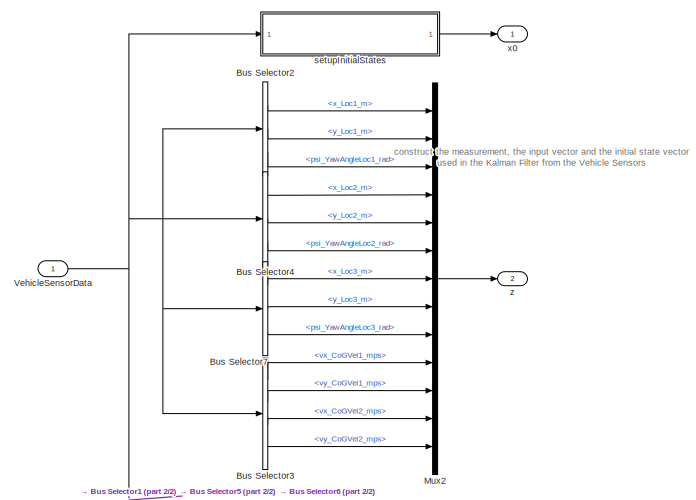
[diagram: CreateKFVectors - part 1/2, top left region]
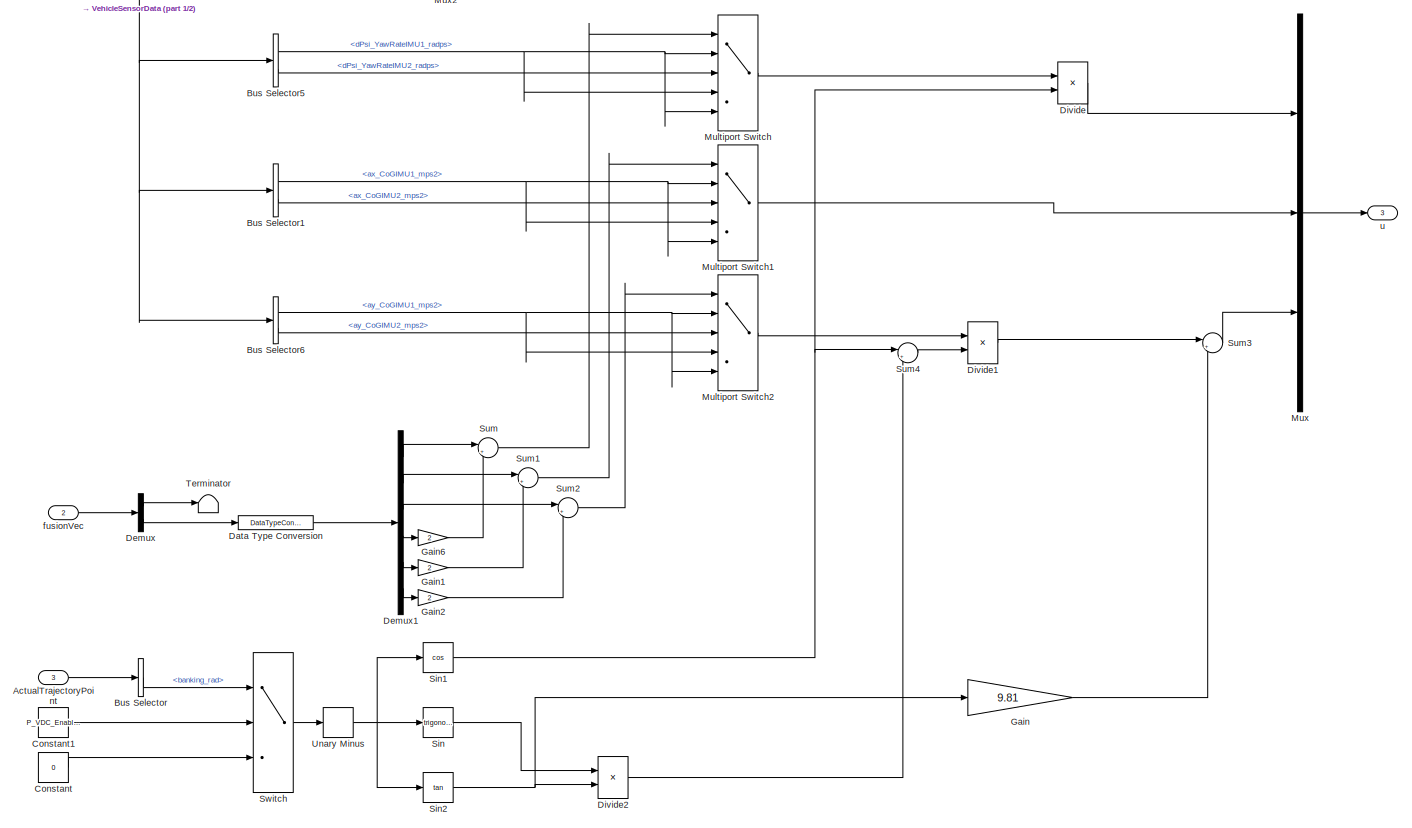
[diagram: CreateKFVectors - part 2/2, full width, bottom band]
BLOCK [SubSystem] CreateKFVectors
  Ports = [3, 3]
  RequestExecContextInheritance = off
BLOCK [Inport] CreateKFVectors/ActualTrajectoryPoint
  IconDisplay = Port number
  OutDataTypeStr = Bus: TrajectoryPoint
  Port = 3
BLOCK [BusSelector] CreateKFVectors/Bus Selector
  OutputAsBus = off
  OutputSignals = banking_rad
  Ports = [1, 1]
BLOCK [BusSelector] CreateKFVectors/Bus Selector1
  OutputAsBus = off
  OutputSignals = ax_CoGIMU1_mps2,ax_CoGIMU2_mps2
  Ports = [1, 2]
BLOCK [BusSelector] CreateKFVectors/Bus Selector2
  OutputAsBus = off
  OutputSignals = x_Loc1_m,y_Loc1_m,psi_YawAngleLoc1_rad
  Ports = [1, 3]
BLOCK [BusSelector] CreateKFVectors/Bus Selector3
  OutputAsBus = off
  OutputSignals = vx_CoGVel1_mps,vy_CoGVel1_mps,vx_CoGVel2_mps,vy_CoGVel2_mps
  Ports = [1, 4]
BLOCK [BusSelector] CreateKFVectors/Bus Selector4
  OutputAsBus = off
  OutputSignals = x_Loc2_m,y_Loc2_m,psi_YawAngleLoc2_rad
  Ports = [1, 3]
BLOCK [BusSelector] CreateKFVectors/Bus Selector5
  OutputAsBus = off
  OutputSignals = dPsi_YawRateIMU1_radps,dPsi_YawRateIMU2_radps
  Ports = [1, 2]
BLOCK [BusSelector] CreateKFVectors/Bus Selector6
  OutputAsBus = off
  OutputSignals = ay_CoGIMU1_mps2,ay_CoGIMU2_mps2
  Ports = [1, 2]
BLOCK [BusSelector] CreateKFVectors/Bus Selector7
  OutputAsBus = off
  OutputSignals = x_Loc3_m,y_Loc3_m,psi_YawAngleLoc3_rad
  Ports = [1, 3]
BLOCK [Constant] CreateKFVectors/Constant
  Value = 0
BLOCK [Constant] CreateKFVectors/Constant1
  Value = P_VDC_EnableBankingCompStateEst_b
BLOCK [DataTypeConversion] CreateKFVectors/Data Type Conversion
  OutDataTypeStr = double
  RndMeth = Floor
  SaturateOnIntegerOverflow = off
BLOCK [Demux] CreateKFVectors/Demux
  DisplayOption = bar
  Outputs = [13 6]
  Ports = [1, 2]
BLOCK [Demux] CreateKFVectors/Demux1
  DisplayOption = bar
  Outputs = 6
  Ports = [1, 6]
BLOCK [Product] CreateKFVectors/Divide
  InputSameDT = off
  Inputs = */
  OutDataTypeStr = Inherit: Inherit via internal rule
  Ports = [2, 1]
  RndMeth = Floor
  SaturateOnIntegerOverflow = off
BLOCK [Product] CreateKFVectors/Divide1
  InputSameDT = off
  Inputs = **
  OutDataTypeStr = Inherit: Inherit via internal rule
  Ports = [2, 1]
  RndMeth = Floor
  SaturateOnIntegerOverflow = off
BLOCK [Product] CreateKFVectors/Divide2
  InputSameDT = off
  Inputs = **
  OutDataTypeStr = Inherit: Inherit via internal rule
  Ports = [2, 1]
  RndMeth = Floor
  SaturateOnIntegerOverflow = off
BLOCK [Gain] CreateKFVectors/Gain
  Gain = 9.81
  OutDataTypeStr = Inherit: Inherit via internal rule
  ParamDataTypeStr = Inherit: Inherit via internal rule
  SaturateOnIntegerOverflow = off
BLOCK [Gain] CreateKFVectors/Gain1
  Gain = 2
  OutDataTypeStr = Inherit: Inherit via internal rule
  ParamDataTypeStr = Inherit: Inherit via internal rule
  SaturateOnIntegerOverflow = off
BLOCK [Gain] CreateKFVectors/Gain2
  Gain = 2
  OutDataTypeStr = Inherit: Inherit via internal rule
  ParamDataTypeStr = Inherit: Inherit via internal rule
  SaturateOnIntegerOverflow = off
BLOCK [Gain] CreateKFVectors/Gain6
  Gain = 2
  OutDataTypeStr = Inherit: Inherit via internal rule
  ParamDataTypeStr = Inherit: Inherit via internal rule
  SaturateOnIntegerOverflow = off
BLOCK [MultiPortSwitch] CreateKFVectors/Multiport Switch
  DataPortForDefault = Additional data port
  DiagnosticForDefault = Warning
  InputSameDT = off
  Ports = [5, 1]
  SaturateOnIntegerOverflow = off
BLOCK [MultiPortSwitch] CreateKFVectors/Multiport Switch1
  DataPortForDefault = Additional data port
  DiagnosticForDefault = Warning
  InputSameDT = off
  Ports = [5, 1]
  SaturateOnIntegerOverflow = off
BLOCK [MultiPortSwitch] CreateKFVectors/Multiport Switch2
  DataPortForDefault = Additional data port
  DiagnosticForDefault = Warning
  InputSameDT = off
  Ports = [5, 1]
  SaturateOnIntegerOverflow = off
BLOCK [Mux] CreateKFVectors/Mux
  DisplayOption = bar
  Inputs = 3
  Ports = [3, 1]
BLOCK [Mux] CreateKFVectors/Mux2
  DisplayOption = bar
  Inputs = 13
  Ports = [13, 1]
BLOCK [Trigonometry] CreateKFVectors/Sin
  Ports = [1, 1]
BLOCK [Trigonometry] CreateKFVectors/Sin1
  Operator = cos
  Ports = [1, 1]
BLOCK [Trigonometry] CreateKFVectors/Sin2
  Operator = tan
  Ports = [1, 1]
BLOCK [Sum] CreateKFVectors/Sum
  IconShape = round
  InputSameDT = off
  Inputs = |++
  OutDataTypeStr = Inherit: Inherit via internal rule
  Ports = [2, 1]
  SaturateOnIntegerOverflow = off
BLOCK [Sum] CreateKFVectors/Sum1
  IconShape = round
  InputSameDT = off
  Inputs = |++
  OutDataTypeStr = Inherit: Inherit via internal rule
  Ports = [2, 1]
  SaturateOnIntegerOverflow = off
BLOCK [Sum] CreateKFVectors/Sum2
  IconShape = round
  InputSameDT = off
  Inputs = |++
  OutDataTypeStr = Inherit: Inherit via internal rule
  Ports = [2, 1]
  SaturateOnIntegerOverflow = off
BLOCK [Sum] CreateKFVectors/Sum3
  IconShape = round
  InputSameDT = off
  Inputs = |++
  OutDataTypeStr = Inherit: Inherit via internal rule
  Ports = [2, 1]
  SaturateOnIntegerOverflow = off
BLOCK [Sum] CreateKFVectors/Sum4
  IconShape = round
  InputSameDT = off
  Inputs = |++
  OutDataTypeStr = Inherit: Inherit via internal rule
  Ports = [2, 1]
  SaturateOnIntegerOverflow = off
BLOCK [Switch] CreateKFVectors/Switch
  Criteria = u2 > Threshold
  InputSameDT = off
  SaturateOnIntegerOverflow = off
BLOCK [Terminator] CreateKFVectors/Terminator
BLOCK [UnaryMinus] CreateKFVectors/Unary Minus
BLOCK [Inport] CreateKFVectors/VehicleSensorData
  IconDisplay = Port number
BLOCK [Inport] CreateKFVectors/fusionVec
  IconDisplay = Port number
  OutDataTypeStr = boolean
  Port = 2
BLOCK [SubSystem] CreateKFVectors/setupInitialStates
  Ports = [1, 1]
  RequestExecContextInheritance = off
BLOCK [BusSelector] CreateKFVectors/setupInitialStates/Bus Selector
  OutputAsBus = off
  OutputSignals = x_Loc1_m,y_Loc1_m,psi_YawAngleLoc1_rad
  Ports = [1, 3]
BLOCK [BusSelector] CreateKFVectors/setupInitialStates/Bus Selector1
  OutputAsBus = off
  OutputSignals = vx_CoGVel1_mps,vy_CoGVel1_mps
  Ports = [1, 2]
BLOCK [Constant] CreateKFVectors/setupInitialStates/Constant
  Value = 0
BLOCK [Constant] CreateKFVectors/setupInitialStates/Constant1
  Value = P_VDC_ManualInitializationStartVelocity
BLOCK [Constant] CreateKFVectors/setupInitialStates/Constant2
  Value = P_VDC_ManualInitialization_v0
BLOCK [Constant] CreateKFVectors/setupInitialStates/Constant6
  Value = P_VDC_ManualInitializationStateEstimation
BLOCK [Constant] CreateKFVectors/setupInitialStates/Constant7
  Value = P_VDC_ManualInitializationStartPose
BLOCK [Mux] CreateKFVectors/setupInitialStates/Mux
  DisplayOption = bar
  Inputs = 2
  Ports = [2, 1]
BLOCK [Mux] CreateKFVectors/setupInitialStates/Mux1
  DisplayOption = bar
  Inputs = 2
  Ports = [2, 1]
BLOCK [Mux] CreateKFVectors/setupInitialStates/Mux2
  DisplayOption = bar
  Inputs = 2
  Ports = [2, 1]
BLOCK [Mux] CreateKFVectors/setupInitialStates/Mux3
  DisplayOption = bar
  Inputs = 3
  Ports = [3, 1]
BLOCK [Switch] CreateKFVectors/setupInitialStates/Switch1
  Criteria = u2 > Threshold
  InputSameDT = off
  SaturateOnIntegerOverflow = off
BLOCK [Switch] CreateKFVectors/setupInitialStates/Switch3
  Criteria = u2 > Threshold
  InputSameDT = off
  SaturateOnIntegerOverflow = off
BLOCK [Inport] CreateKFVectors/setupInitialStates/VehicleSensorData
  IconDisplay = Port number
BLOCK [Outport] CreateKFVectors/setupInitialStates/x0
  IconDisplay = Port number
BLOCK [Outport] CreateKFVectors/u
  IconDisplay = Port number
  Port = 3
BLOCK [Outport] CreateKFVectors/x0
  IconDisplay = Port number
BLOCK [Outport] CreateKFVectors/z
  IconDisplay = Port number
  Port = 2
BLOCK [SubSystem] CreateResidualsBus
  Ports = [2, 2]
  RequestExecContextInheritance = off
BLOCK [BusCreator] CreateResidualsBus/Bus Creator2
  DisplayOption = bar
  InheritFromInputs = on
  Inputs = 21
  Ports = [21, 1]
BLOCK [SubSystem] CreateResidualsBus/CheckResiduals
  Ports = [1, 1]
  RequestExecContextInheritance = off
BLOCK [Abs] CreateResidualsBus/CheckResiduals/Abs
  SaturateOnIntegerOverflow = off
BLOCK [Abs] CreateResidualsBus/CheckResiduals/Abs1
  SaturateOnIntegerOverflow = off
BLOCK [Abs] CreateResidualsBus/CheckResiduals/Abs10
  SaturateOnIntegerOverflow = off
BLOCK [Abs] CreateResidualsBus/CheckResiduals/Abs11
  SaturateOnIntegerOverflow = off
BLOCK [Abs] CreateResidualsBus/CheckResiduals/Abs12
  SaturateOnIntegerOverflow = off
BLOCK [Abs] CreateResidualsBus/CheckResiduals/Abs2
  SaturateOnIntegerOverflow = off
BLOCK [Abs] CreateResidualsBus/CheckResiduals/Abs3
  SaturateOnIntegerOverflow = off
BLOCK [Abs] CreateResidualsBus/CheckResiduals/Abs4
  SaturateOnIntegerOverflow = off
BLOCK [Abs] CreateResidualsBus/CheckResiduals/Abs5
  SaturateOnIntegerOverflow = off
BLOCK [Abs] CreateResidualsBus/CheckResiduals/Abs6
  SaturateOnIntegerOverflow = off
BLOCK [Abs] CreateResidualsBus/CheckResiduals/Abs7
  SaturateOnIntegerOverflow = off
BLOCK [Abs] CreateResidualsBus/CheckResiduals/Abs8
  SaturateOnIntegerOverflow = off
BLOCK [Abs] CreateResidualsBus/CheckResiduals/Abs9
  SaturateOnIntegerOverflow = off
BLOCK [BusSelector] CreateResidualsBus/CheckResiduals/Bus Selector
  OutputAsBus = off
  OutputSignals = res_xLoc1_m,res_yLoc1_m,res_psiLoc1_rad,res_xLoc2_m,res_yLoc2_m,res_psiLoc2_rad,res_xLoc3_m,res_yLoc3_m,res_psiLoc3_rad,res_vxVel1_mps,res_vyVel1_mps,res_vxVel2_mps,res_vyVel2_mps
  Ports = [1, 13]
BLOCK [Reference] CreateResidualsBus/CheckResiduals/Compare To Constant  REF=simulink/Logic and Bit
Operations/Compare
To Constant
  Ports = [1, 1]
  SourceBlock = simulink/Logic and Bit\nOperations/Compare\nTo Constant
  SourceProductBaseCode = SL
  SourceProductName = Simulink
  SourceType = Compare To Constant
BLOCK [Reference] CreateResidualsBus/CheckResiduals/Compare To Constant1  REF=simulink/Logic and Bit
Operations/Compare
To Constant
  Ports = [1, 1]
  SourceBlock = simulink/Logic and Bit\nOperations/Compare\nTo Constant
  SourceProductBaseCode = SL
  SourceProductName = Simulink
  SourceType = Compare To Constant
BLOCK [Reference] CreateResidualsBus/CheckResiduals/Compare To Constant10  REF=simulink/Logic and Bit
Operations/Compare
To Constant
  Ports = [1, 1]
  SourceBlock = simulink/Logic and Bit\nOperations/Compare\nTo Constant
  SourceProductBaseCode = SL
  SourceProductName = Simulink
  SourceType = Compare To Constant
BLOCK [Reference] CreateResidualsBus/CheckResiduals/Compare To Constant11  REF=simulink/Logic and Bit
Operations/Compare
To Constant
  Ports = [1, 1]
  SourceBlock = simulink/Logic and Bit\nOperations/Compare\nTo Constant
  SourceProductBaseCode = SL
  SourceProductName = Simulink
  SourceType = Compare To Constant
BLOCK [Reference] CreateResidualsBus/CheckResiduals/Compare To Constant12  REF=simulink/Logic and Bit
Operations/Compare
To Constant
  Ports = [1, 1]
  SourceBlock = simulink/Logic and Bit\nOperations/Compare\nTo Constant
  SourceProductBaseCode = SL
  SourceProductName = Simulink
  SourceType = Compare To Constant
BLOCK [Reference] CreateResidualsBus/CheckResiduals/Compare To Constant2  REF=simulink/Logic and Bit
Operations/Compare
To Constant
  Ports = [1, 1]
  SourceBlock = simulink/Logic and Bit\nOperations/Compare\nTo Constant
  SourceProductBaseCode = SL
  SourceProductName = Simulink
  SourceType = Compare To Constant
BLOCK [Reference] CreateResidualsBus/CheckResiduals/Compare To Constant3  REF=simulink/Logic and Bit
Operations/Compare
To Constant
  Ports = [1, 1]
  SourceBlock = simulink/Logic and Bit\nOperations/Compare\nTo Constant
  SourceProductBaseCode = SL
  SourceProductName = Simulink
  SourceType = Compare To Constant
BLOCK [Reference] CreateResidualsBus/CheckResiduals/Compare To Constant4  REF=simulink/Logic and Bit
Operations/Compare
To Constant
  Ports = [1, 1]
  SourceBlock = simulink/Logic and Bit\nOperations/Compare\nTo Constant
  SourceProductBaseCode = SL
  SourceProductName = Simulink
  SourceType = Compare To Constant
BLOCK [Reference] CreateResidualsBus/CheckResiduals/Compare To Constant5  REF=simulink/Logic and Bit
Operations/Compare
To Constant
  Ports = [1, 1]
  SourceBlock = simulink/Logic and Bit\nOperations/Compare\nTo Constant
  SourceProductBaseCode = SL
  SourceProductName = Simulink
  SourceType = Compare To Constant
BLOCK [Reference] CreateResidualsBus/CheckResiduals/Compare To Constant6  REF=simulink/Logic and Bit
Operations/Compare
To Constant
  Ports = [1, 1]
  SourceBlock = simulink/Logic and Bit\nOperations/Compare\nTo Constant
  SourceProductBaseCode = SL
  SourceProductName = Simulink
  SourceType = Compare To Constant
BLOCK [Reference] CreateResidualsBus/CheckResiduals/Compare To Constant7  REF=simulink/Logic and Bit
Operations/Compare
To Constant
  Ports = [1, 1]
  SourceBlock = simulink/Logic and Bit\nOperations/Compare\nTo Constant
  SourceProductBaseCode = SL
  SourceProductName = Simulink
  SourceType = Compare To Constant
BLOCK [Reference] CreateResidualsBus/CheckResiduals/Compare To Constant8  REF=simulink/Logic and Bit
Operations/Compare
To Constant
  Ports = [1, 1]
  SourceBlock = simulink/Logic and Bit\nOperations/Compare\nTo Constant
  SourceProductBaseCode = SL
  SourceProductName = Simulink
  SourceType = Compare To Constant
BLOCK [Reference] CreateResidualsBus/CheckResiduals/Compare To Constant9  REF=simulink/Logic and Bit
Operations/Compare
To Constant
  Ports = [1, 1]
  SourceBlock = simulink/Logic and Bit\nOperations/Compare\nTo Constant
  SourceProductBaseCode = SL
  SourceProductName = Simulink
  SourceType = Compare To Constant
BLOCK [DiscreteFir] CreateResidualsBus/CheckResiduals/Discrete FIR Filter1
  Coefficients = ones(1, P_VDC_ResFilterSamples)/P_VDC_ResFilterSamples
  InputPortMap = u0
  OutputPortMap = o0
  Ports = [1, 1]
BLOCK [DiscreteFir] CreateResidualsBus/CheckResiduals/Discrete FIR Filter10
  Coefficients = ones(1, P_VDC_ResFilterSamples)/P_VDC_ResFilterSamples
  InputPortMap = u0
  OutputPortMap = o0
  Ports = [1, 1]
BLOCK [DiscreteFir] CreateResidualsBus/CheckResiduals/Discrete FIR Filter11
  Coefficients = ones(1, P_VDC_ResFilterSamples)/P_VDC_ResFilterSamples
  InputPortMap = u0
  OutputPortMap = o0
  Ports = [1, 1]
BLOCK [DiscreteFir] CreateResidualsBus/CheckResiduals/Discrete FIR Filter12
  Coefficients = ones(1, P_VDC_ResFilterSamples)/P_VDC_ResFilterSamples
  InputPortMap = u0
  OutputPortMap = o0
  Ports = [1, 1]
BLOCK [DiscreteFir] CreateResidualsBus/CheckResiduals/Discrete FIR Filter13
  Coefficients = ones(1, P_VDC_ResFilterSamples)/P_VDC_ResFilterSamples
  InputPortMap = u0
  OutputPortMap = o0
  Ports = [1, 1]
BLOCK [DiscreteFir] CreateResidualsBus/CheckResiduals/Discrete FIR Filter2
  Coefficients = ones(1, P_VDC_ResFilterSamples)/P_VDC_ResFilterSamples
  InputPortMap = u0
  OutputPortMap = o0
  Ports = [1, 1]
BLOCK [DiscreteFir] CreateResidualsBus/CheckResiduals/Discrete FIR Filter3
  Coefficients = ones(1, P_VDC_ResFilterSamples)/P_VDC_ResFilterSamples
  InputPortMap = u0
  OutputPortMap = o0
  Ports = [1, 1]
BLOCK [DiscreteFir] CreateResidualsBus/CheckResiduals/Discrete FIR Filter4
  Coefficients = ones(1, P_VDC_ResFilterSamples)/P_VDC_ResFilterSamples
  InputPortMap = u0
  OutputPortMap = o0
  Ports = [1, 1]
BLOCK [DiscreteFir] CreateResidualsBus/CheckResiduals/Discrete FIR Filter5
  Coefficients = ones(1, P_VDC_ResFilterSamples)/P_VDC_ResFilterSamples
  InputPortMap = u0
  OutputPortMap = o0
  Ports = [1, 1]
BLOCK [DiscreteFir] CreateResidualsBus/CheckResiduals/Discrete FIR Filter6
  Coefficients = ones(1, P_VDC_ResFilterSamples)/P_VDC_ResFilterSamples
  InputPortMap = u0
  OutputPortMap = o0
  Ports = [1, 1]
BLOCK [DiscreteFir] CreateResidualsBus/CheckResiduals/Discrete FIR Filter7
  Coefficients = ones(1, P_VDC_ResFilterSamples)/P_VDC_ResFilterSamples
  InputPortMap = u0
  OutputPortMap = o0
  Ports = [1, 1]
BLOCK [DiscreteFir] CreateResidualsBus/CheckResiduals/Discrete FIR Filter8
  Coefficients = ones(1, P_VDC_ResFilterSamples)/P_VDC_ResFilterSamples
  InputPortMap = u0
  OutputPortMap = o0
  Ports = [1, 1]
BLOCK [DiscreteFir] CreateResidualsBus/CheckResiduals/Discrete FIR Filter9
  Coefficients = ones(1, P_VDC_ResFilterSamples)/P_VDC_ResFilterSamples
  InputPortMap = u0
  OutputPortMap = o0
  Ports = [1, 1]
BLOCK [Logic] CreateResidualsBus/CheckResiduals/Logical Operator
  AllPortsSameDT = off
  Inputs = 13
  OutDataTypeStr = boolean
  Ports = [13, 1]
BLOCK [Inport] CreateResidualsBus/CheckResiduals/Residuals
  IconDisplay = Port number
BLOCK [Outport] CreateResidualsBus/CheckResiduals/Residuals_OK
  IconDisplay = Port number
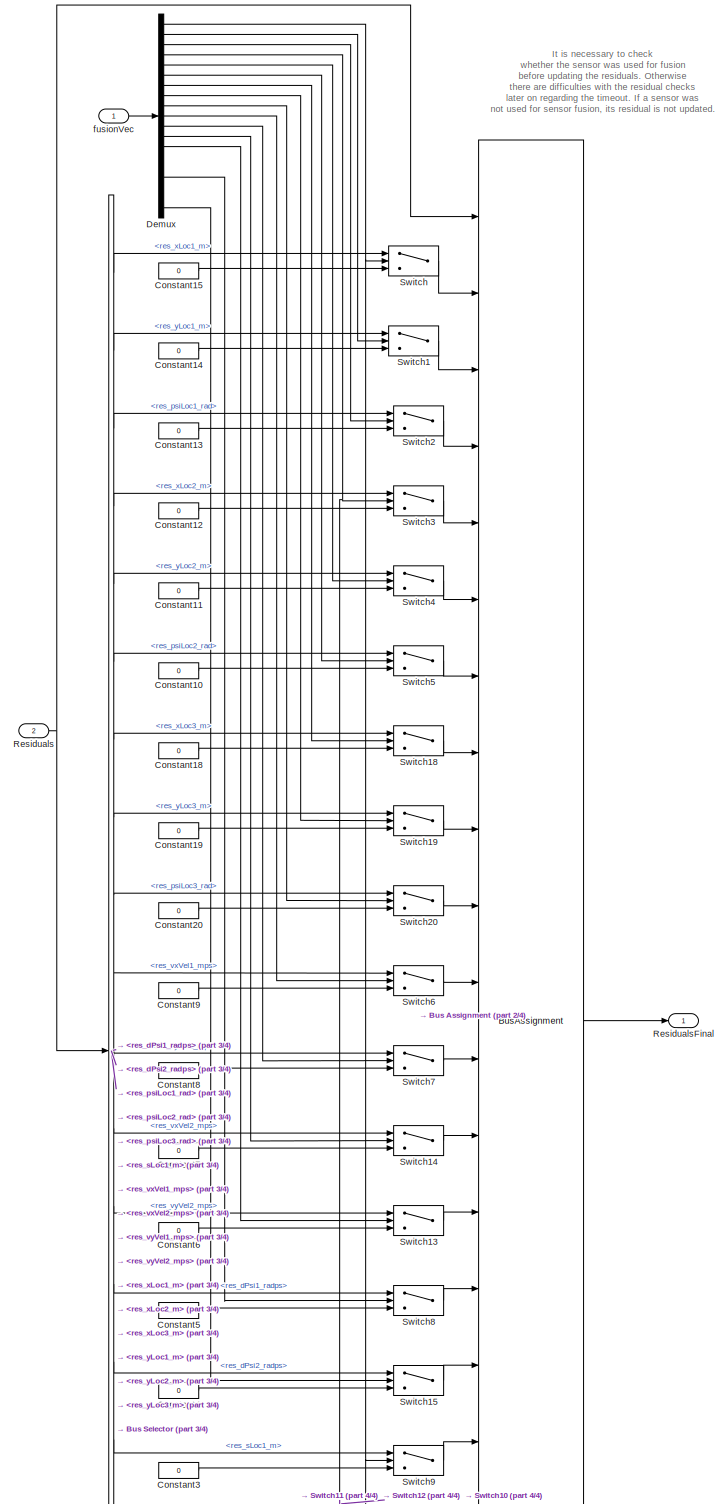
[diagram: CreateResidualsBus/ConditionalResidualUpdate - part 1/4, most of the canvas]
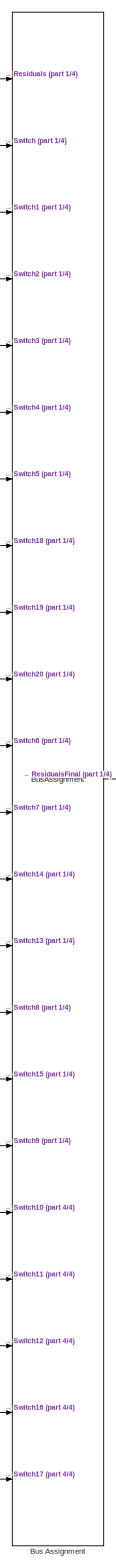
[diagram: CreateResidualsBus/ConditionalResidualUpdate - part 2/4, right side, full height]
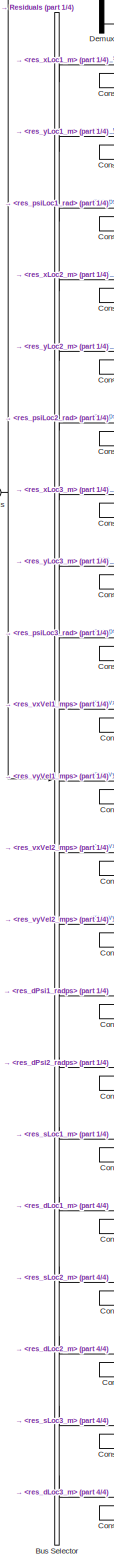
[diagram: CreateResidualsBus/ConditionalResidualUpdate - part 3/4, left side, full height]
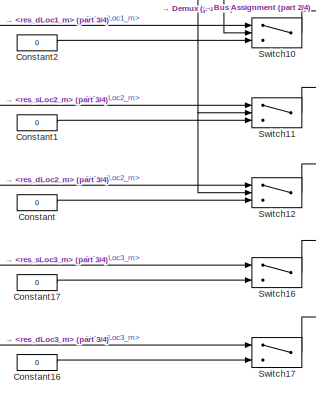
[diagram: CreateResidualsBus/ConditionalResidualUpdate - part 4/4, bottom center region]
BLOCK [SubSystem] CreateResidualsBus/ConditionalResidualUpdate
  Ports = [2, 1]
  RequestExecContextInheritance = off
BLOCK [BusAssignment] CreateResidualsBus/ConditionalResidualUpdate/Bus Assignment
  AssignedSignals = res_xLoc1_m,res_yLoc1_m,res_psiLoc1_rad,res_xLoc2_m,res_yLoc2_m,res_psiLoc2_rad,res_xLoc3_m,res_yLoc3_m,res_psiLoc3_rad,res_vxVel1_mps,res_vyVel1_mps,res_vxVel2_mps,res_vyVel2_mps,res_dPsi1_radps,res_dPsi2_radps,res_sLoc1_m,res_dLoc1_m,res_sLoc2_m,res_dLoc2_m,res_sLoc3_m,res_dLoc3_m
  Ports = [22, 1]
BLOCK [BusSelector] CreateResidualsBus/ConditionalResidualUpdate/Bus Selector
  OutputAsBus = off
  OutputSignals = res_xLoc1_m,res_yLoc1_m,res_psiLoc1_rad,res_xLoc2_m,res_yLoc2_m,res_psiLoc2_rad,res_xLoc3_m,res_yLoc3_m,res_psiLoc3_rad,res_vxVel1_mps,res_vyVel1_mps,res_vxVel2_mps,res_vyVel2_mps,res_dPsi1_radps,res_dPsi2_radps,res_sLoc1_m,res_dLoc1_m,res_sLoc2_m,res_dLoc2_m,res_sLoc3_m,res_dLoc3_m
  Ports = [1, 21]
BLOCK [Constant] CreateResidualsBus/ConditionalResidualUpdate/Constant
  Value = 0
BLOCK [Constant] CreateResidualsBus/ConditionalResidualUpdate/Constant1
  Value = 0
BLOCK [Constant] CreateResidualsBus/ConditionalResidualUpdate/Constant10
  Value = 0
BLOCK [Constant] CreateResidualsBus/ConditionalResidualUpdate/Constant11
  Value = 0
BLOCK [Constant] CreateResidualsBus/ConditionalResidualUpdate/Constant12
  Value = 0
BLOCK [Constant] CreateResidualsBus/ConditionalResidualUpdate/Constant13
  Value = 0
BLOCK [Constant] CreateResidualsBus/ConditionalResidualUpdate/Constant14
  Value = 0
BLOCK [Constant] CreateResidualsBus/ConditionalResidualUpdate/Constant15
  Value = 0
BLOCK [Constant] CreateResidualsBus/ConditionalResidualUpdate/Constant16
  Value = 0
BLOCK [Constant] CreateResidualsBus/ConditionalResidualUpdate/Constant17
  Value = 0
BLOCK [Constant] CreateResidualsBus/ConditionalResidualUpdate/Constant18
  Value = 0
BLOCK [Constant] CreateResidualsBus/ConditionalResidualUpdate/Constant19
  Value = 0
BLOCK [Constant] CreateResidualsBus/ConditionalResidualUpdate/Constant2
  Value = 0
BLOCK [Constant] CreateResidualsBus/ConditionalResidualUpdate/Constant20
  Value = 0
BLOCK [Constant] CreateResidualsBus/ConditionalResidualUpdate/Constant3
  Value = 0
BLOCK [Constant] CreateResidualsBus/ConditionalResidualUpdate/Constant4
  Value = 0
BLOCK [Constant] CreateResidualsBus/ConditionalResidualUpdate/Constant5
  Value = 0
BLOCK [Constant] CreateResidualsBus/ConditionalResidualUpdate/Constant6
  Value = 0
BLOCK [Constant] CreateResidualsBus/ConditionalResidualUpdate/Constant7
  Value = 0
BLOCK [Constant] CreateResidualsBus/ConditionalResidualUpdate/Constant8
  Value = 0
BLOCK [Constant] CreateResidualsBus/ConditionalResidualUpdate/Constant9
  Value = 0
BLOCK [Demux] CreateResidualsBus/ConditionalResidualUpdate/Demux
  DisplayOption = bar
  Outputs = 19
  Ports = [1, 19]
BLOCK [Inport] CreateResidualsBus/ConditionalResidualUpdate/Residuals
  IconDisplay = Port number
  Port = 2
BLOCK [Outport] CreateResidualsBus/ConditionalResidualUpdate/ResidualsFinal
  IconDisplay = Port number
BLOCK [Switch] CreateResidualsBus/ConditionalResidualUpdate/Switch
  Criteria = u2 > Threshold
  InputSameDT = off
  SaturateOnIntegerOverflow = off
BLOCK [Switch] CreateResidualsBus/ConditionalResidualUpdate/Switch1
  Criteria = u2 > Threshold
  InputSameDT = off
  SaturateOnIntegerOverflow = off
BLOCK [Switch] CreateResidualsBus/ConditionalResidualUpdate/Switch10
  Criteria = u2 > Threshold
  InputSameDT = off
  SaturateOnIntegerOverflow = off
BLOCK [Switch] CreateResidualsBus/ConditionalResidualUpdate/Switch11
  Criteria = u2 > Threshold
  InputSameDT = off
  SaturateOnIntegerOverflow = off
BLOCK [Switch] CreateResidualsBus/ConditionalResidualUpdate/Switch12
  Criteria = u2 > Threshold
  InputSameDT = off
  SaturateOnIntegerOverflow = off
BLOCK [Switch] CreateResidualsBus/ConditionalResidualUpdate/Switch13
  Criteria = u2 > Threshold
  InputSameDT = off
  SaturateOnIntegerOverflow = off
BLOCK [Switch] CreateResidualsBus/ConditionalResidualUpdate/Switch14
  Criteria = u2 > Threshold
  InputSameDT = off
  SaturateOnIntegerOverflow = off
BLOCK [Switch] CreateResidualsBus/ConditionalResidualUpdate/Switch15
  Criteria = u2 > Threshold
  InputSameDT = off
  SaturateOnIntegerOverflow = off
BLOCK [Switch] CreateResidualsBus/ConditionalResidualUpdate/Switch16
  Criteria = u2 > Threshold
  InputSameDT = off
  SaturateOnIntegerOverflow = off
BLOCK [Switch] CreateResidualsBus/ConditionalResidualUpdate/Switch17
  Criteria = u2 > Threshold
  InputSameDT = off
  SaturateOnIntegerOverflow = off
BLOCK [Switch] CreateResidualsBus/ConditionalResidualUpdate/Switch18
  Criteria = u2 > Threshold
  InputSameDT = off
  SaturateOnIntegerOverflow = off
BLOCK [Switch] CreateResidualsBus/ConditionalResidualUpdate/Switch19
  Criteria = u2 > Threshold
  InputSameDT = off
  SaturateOnIntegerOverflow = off
BLOCK [Switch] CreateResidualsBus/ConditionalResidualUpdate/Switch2
  Criteria = u2 > Threshold
  InputSameDT = off
  SaturateOnIntegerOverflow = off
BLOCK [Switch] CreateResidualsBus/ConditionalResidualUpdate/Switch20
  Criteria = u2 > Threshold
  InputSameDT = off
  SaturateOnIntegerOverflow = off
BLOCK [Switch] CreateResidualsBus/ConditionalResidualUpdate/Switch3
  Criteria = u2 > Threshold
  InputSameDT = off
  SaturateOnIntegerOverflow = off
BLOCK [Switch] CreateResidualsBus/ConditionalResidualUpdate/Switch4
  Criteria = u2 > Threshold
  InputSameDT = off
  SaturateOnIntegerOverflow = off
BLOCK [Switch] CreateResidualsBus/ConditionalResidualUpdate/Switch5
  Criteria = u2 > Threshold
  InputSameDT = off
  SaturateOnIntegerOverflow = off
BLOCK [Switch] CreateResidualsBus/ConditionalResidualUpdate/Switch6
  Criteria = u2 > Threshold
  InputSameDT = off
  SaturateOnIntegerOverflow = off
BLOCK [Switch] CreateResidualsBus/ConditionalResidualUpdate/Switch7
  Criteria = u2 > Threshold
  InputSameDT = off
  SaturateOnIntegerOverflow = off
BLOCK [Switch] CreateResidualsBus/ConditionalResidualUpdate/Switch8
  Criteria = u2 > Threshold
  InputSameDT = off
  SaturateOnIntegerOverflow = off
BLOCK [Switch] CreateResidualsBus/ConditionalResidualUpdate/Switch9
  Criteria = u2 > Threshold
  InputSameDT = off
  SaturateOnIntegerOverflow = off
BLOCK [Inport] CreateResidualsBus/ConditionalResidualUpdate/fusionVec
  IconDisplay = Port number
BLOCK [Demux] CreateResidualsBus/Demux3
  DisplayOption = bar
  Outputs = 21
  Ports = [1, 21]
BLOCK [Outport] CreateResidualsBus/Residuals
  IconDisplay = Port number
BLOCK [Outport] CreateResidualsBus/Residuals_OK
  IconDisplay = Port number
  OutDataTypeStr = boolean
  Port = 2
BLOCK [Inport] CreateResidualsBus/SensorFusionRawResiduals
  IconDisplay = Port number
BLOCK [Inport] CreateResidualsBus/fusionVec
  IconDisplay = Port number
  Port = 2
BLOCK [SubSystem] CreateStateEstimateBus
  Ports = [2, 1]
  RequestExecContextInheritance = off
BLOCK [BusCreator] CreateStateEstimateBus/Bus Creator
  DisplayOption = bar
  InheritFromInputs = on
  Inputs = 6
  Ports = [6, 1]
BLOCK [BusCreator] CreateStateEstimateBus/Bus Creator1
  DisplayOption = bar
  InheritFromInputs = on
  Inputs = 3
  OutDataTypeStr = Bus: CartPos
  Ports = [3, 1]
BLOCK [Demux] CreateStateEstimateBus/Demux
  DisplayOption = bar
  Outputs = 5
  Ports = [1, 5]
BLOCK [Demux] CreateStateEstimateBus/Demux1
  DisplayOption = bar
  Outputs = 3
  Ports = [1, 3]
BLOCK [SignalConversion] CreateStateEstimateBus/Signal Conversion2
  OverrideOpt = off
BLOCK [SignalConversion] CreateStateEstimateBus/Signal Conversion3
  OverrideOpt = off
BLOCK [SignalConversion] CreateStateEstimateBus/Signal Conversion4
  OverrideOpt = off
BLOCK [SignalConversion] CreateStateEstimateBus/Signal Conversion5
  OverrideOpt = off
BLOCK [SignalConversion] CreateStateEstimateBus/Signal Conversion8
  OverrideOpt = off
BLOCK [SignalConversion] CreateStateEstimateBus/Signal Conversion9
  OverrideOpt = off
BLOCK [Outport] CreateStateEstimateBus/StateEstimateFull
  IconDisplay = Port number
BLOCK [Inport] CreateStateEstimateBus/StateEstimateSensorFusion
  IconDisplay = Port number
  Port = 2
BLOCK [Inport] CreateStateEstimateBus/SystemInputs
  IconDisplay = Port number
BLOCK [Reference] CreateStateEstimateBus/Transfer Fcn First Order  REF=simulink/Discrete/Transfer Fcn
First Order
  Ports = [1, 1]
  SourceBlock = simulink/Discrete/Transfer Fcn\nFirst Order
  SourceProductBaseCode = SL
  SourceProductName = Simulink
  SourceType = First Order Transfer Fcn
BLOCK [Reference] CreateStateEstimateBus/Transfer Fcn First Order1  REF=simulink/Discrete/Transfer Fcn
First Order
  Ports = [1, 1]
  SourceBlock = simulink/Discrete/Transfer Fcn\nFirst Order
  SourceProductBaseCode = SL
  SourceProductName = Simulink
  SourceType = First Order Transfer Fcn
BLOCK [Reference] CreateStateEstimateBus/Transfer Fcn First Order2  REF=simulink/Discrete/Transfer Fcn
First Order
  Ports = [1, 1]
  SourceBlock = simulink/Discrete/Transfer Fcn\nFirst Order
  SourceProductBaseCode = SL
  SourceProductName = Simulink
  SourceType = First Order Transfer Fcn
BLOCK [SignalConversion] CreateStateEstimateBus/sig_copy
  OverrideOpt = off
BLOCK [SignalConversion] CreateStateEstimateBus/sig_copy 
  OverrideOpt = off
BLOCK [Demux] Demux
  DisplayOption = bar
  Outputs = [13 6]
  Ports = [1, 2]
BLOCK [Inport] EnableSensorFusion
  IconDisplay = Port number
  OutDataTypeStr = boolean
  Port = 2
BLOCK [Logic] Logical Operator
  AllPortsSameDT = off
  OutDataTypeStr = boolean
  Ports = [2, 1]
BLOCK [Logic] Logical Operator1
  AllPortsSameDT = off
  OutDataTypeStr = boolean
  Ports = [2, 1]
BLOCK [Logic] Logical Operator2
  AllPortsSameDT = off
  Operator = OR
  OutDataTypeStr = boolean
  Ports = [2, 1]
BLOCK [Logic] Logical Operator3
  AllPortsSameDT = off
  Operator = OR
  OutDataTypeStr = boolean
  Ports = [2, 1]
BLOCK [Logic] Logical Operator4
  AllPortsSameDT = off
  OutDataTypeStr = boolean
  Ports = [2, 1]
BLOCK [Logic] Logical Operator5
  AllPortsSameDT = off
  Operator = NOT
  OutDataTypeStr = boolean
  Ports = [1, 1]
BLOCK [Delay] Resettable Delay
  DelayLength = 1
  ExternalReset = Rising
  InitialCondition = eye(5)*0.1
  InputPortMap = u0,r5
  Ports = [2, 1]
BLOCK [Delay] Resettable Delay3
  DelayLength = 1
  ExternalReset = Rising
  InitialConditionSource = Input port
  InputPortMap = u0,r5,p4
  Ports = [3, 1]
BLOCK [Outport] Residuals
  IconDisplay = Port number
  OutDataTypeStr = Bus: StateEstimation_residuals
  Port = 2
BLOCK [Outport] Residuals_OK
  IconDisplay = Port number
  OutDataTypeStr = boolean
  Port = 3
BLOCK [Outport] StateEstimate 
  IconDisplay = Port number
  OutDataTypeStr = Bus: StateEstimation_state
BLOCK [SubSystem] Subsystem
  Ports = [2, 1]
  RequestExecContextInheritance = off
BLOCK [BusSelector] Subsystem/Bus Selector
  OutputAsBus = off
  OutputSignals = valid_IMU1_b,valid_IMU2_b
  Ports = [1, 2]
BLOCK [Constant] Subsystem/Constant
  Value = eye(5)*tS
BLOCK [Logic] Subsystem/Logical Operator
  AllPortsSameDT = off
  Operator = OR
  OutDataTypeStr = boolean
  Ports = [2, 1]
BLOCK [Inport] Subsystem/P
  IconDisplay = Port number
BLOCK [Outport] Subsystem/P_upd
  IconDisplay = Port number
BLOCK [Sum] Subsystem/Sum
  IconShape = round
  InputSameDT = off
  Inputs = |++
  OutDataTypeStr = Inherit: Inherit via internal rule
  Ports = [2, 1]
  SaturateOnIntegerOverflow = off
BLOCK [Switch] Subsystem/Switch1
  Criteria = u2 > Threshold
  InputSameDT = off
  SaturateOnIntegerOverflow = off
BLOCK [Inport] Subsystem/VehicleSensorData
  IconDisplay = Port number
  Port = 2
BLOCK [Sum] Sum
  IconShape = round
  InputSameDT = off
  Inputs = ++|
  OutDataTypeStr = Inherit: Inherit via internal rule
  Ports = [2, 1]
  SaturateOnIntegerOverflow = off
BLOCK [Switch] Switch
  Criteria = u2 > Threshold
  InputSameDT = off
  SaturateOnIntegerOverflow = off
BLOCK [Switch] Switch1
  Criteria = u2 > Threshold
  InputSameDT = off
  SaturateOnIntegerOverflow = off
BLOCK [Switch] Switch2
  Criteria = u2 > Threshold
  InputSameDT = off
  SaturateOnIntegerOverflow = off
BLOCK [Switch] Switch3
  Criteria = u2 > Threshold
  InputSameDT = off
  SaturateOnIntegerOverflow = off
BLOCK [Terminator] Terminator1
BLOCK [UnitDelay] Unit Delay
  InputProcessing = Elements as channels (sample based)
  SampleTime = -1
BLOCK [UnitDelay] Unit Delay1
  InputProcessing = Elements as channels (sample based)
  SampleTime = -1
BLOCK [Inport] VehicleSensorData
  IconDisplay = Port number
  OutDataTypeStr = Bus: VehicleSensorData
  Port = 3
BLOCK [SubSystem] createFusionVec
  Ports = [1, 1]
  RequestExecContextInheritance = off
BLOCK [BusSelector] createFusionVec/Bus Selector
  OutputAsBus = off
  OutputSignals = t_EstimateLoc1_s,t_EstimateLoc2_s,t_EstimateLoc3_s,valid_Loc1_b,valid_Loc2_b,valid_Loc3_b,valid_Vel1_b,valid_Vel2_b,valid_IMU1_b,valid_IMU2_b
  Ports = [1, 10]
BLOCK [Constant] createFusionVec/Constant
  Value = ones(3, 1)
BLOCK [Constant] createFusionVec/Constant1
  Value = zeros(3, 1)
BLOCK [Constant] createFusionVec/Constant10
  Value = ones(3, 1)
BLOCK [Constant] createFusionVec/Constant11
  Value = zeros(3, 1)
BLOCK [Constant] createFusionVec/Constant12
  Value = ones(3, 1)
BLOCK [Constant] createFusionVec/Constant13
  Value = zeros(3, 1)
BLOCK [Constant] createFusionVec/Constant2
  Value = ones(3, 1)
BLOCK [Constant] createFusionVec/Constant3
  Value = zeros(3, 1)
BLOCK [Constant] createFusionVec/Constant4
  Value = ones(2, 1)
BLOCK [Constant] createFusionVec/Constant5
  Value = zeros(2, 1)
BLOCK [Constant] createFusionVec/Constant6
  Value = ones(2, 1)
BLOCK [Constant] createFusionVec/Constant7
  Value = zeros(2, 1)
BLOCK [Constant] createFusionVec/Constant8
  Value = ones(3, 1)
BLOCK [Constant] createFusionVec/Constant9
  Value = zeros(3, 1)
BLOCK [DataTypeConversion] createFusionVec/Data Type Conversion
  OutDataTypeStr = boolean
  RndMeth = Floor
  SaturateOnIntegerOverflow = off
BLOCK [Reference] createFusionVec/Detect Change  REF=simulink/Logic and Bit
Operations/Detect
Change
  Ports = [1, 1]
  SourceBlock = simulink/Logic and Bit\nOperations/Detect\nChange
  SourceProductBaseCode = SL
  SourceProductName = Simulink
  SourceType = Detect Change
BLOCK [Reference] createFusionVec/Detect Change1  REF=simulink/Logic and Bit
Operations/Detect
Change
  Ports = [1, 1]
  SourceBlock = simulink/Logic and Bit\nOperations/Detect\nChange
  SourceProductBaseCode = SL
  SourceProductName = Simulink
  SourceType = Detect Change
BLOCK [Reference] createFusionVec/Detect Change2  REF=simulink/Logic and Bit
Operations/Detect
Change
  Ports = [1, 1]
  SourceBlock = simulink/Logic and Bit\nOperations/Detect\nChange
  SourceProductBaseCode = SL
  SourceProductName = Simulink
  SourceType = Detect Change
BLOCK [Logic] createFusionVec/Logical Operator
  AllPortsSameDT = off
  OutDataTypeStr = boolean
  Ports = [2, 1]
BLOCK [Logic] createFusionVec/Logical Operator1
  AllPortsSameDT = off
  OutDataTypeStr = boolean
  Ports = [2, 1]
BLOCK [Logic] createFusionVec/Logical Operator2
  AllPortsSameDT = off
  OutDataTypeStr = boolean
  Ports = [2, 1]
BLOCK [Mux] createFusionVec/Mux
  DisplayOption = bar
  Inputs = 7
  Ports = [7, 1]
BLOCK [Switch] createFusionVec/Switch
  Criteria = u2 > Threshold
  InputSameDT = off
  SaturateOnIntegerOverflow = off
BLOCK [Switch] createFusionVec/Switch1
  Criteria = u2 > Threshold
  InputSameDT = off
  SaturateOnIntegerOverflow = off
BLOCK [Switch] createFusionVec/Switch2
  Criteria = u2 > Threshold
  InputSameDT = off
  SaturateOnIntegerOverflow = off
BLOCK [Switch] createFusionVec/Switch3
  Criteria = u2 > Threshold
  InputSameDT = off
  SaturateOnIntegerOverflow = off
BLOCK [Switch] createFusionVec/Switch4
  Criteria = u2 > Threshold
  InputSameDT = off
  SaturateOnIntegerOverflow = off
BLOCK [Switch] createFusionVec/Switch5
  Criteria = u2 > Threshold
  InputSameDT = off
  SaturateOnIntegerOverflow = off
BLOCK [Switch] createFusionVec/Switch6
  Criteria = u2 > Threshold
  InputSameDT = off
  SaturateOnIntegerOverflow = off
BLOCK [Inport] createFusionVec/VehicleSensorData
  IconDisplay = Port number
BLOCK [Outport] createFusionVec/fusionVec
  IconDisplay = Port number
BLOCK [SubSystem] kf_joint_wrapper
  ErrorFcn = Stateflow.Translate.translate
  PermitHierarchicalResolution = ExplicitOnly
  Ports = [5, 3]
  RequestExecContextInheritance = off
  SFBlockType = MATLAB Function
  TreatAsAtomicUnit = on
BLOCK [Demux] kf_joint_wrapper/ Demux 
  Outputs = 1
  Ports = [1, 1]
BLOCK [S-Function] kf_joint_wrapper/ SFunction 
  EnableBusSupport = on
  FunctionName = sf_sfun
  Parameters = P_VDC_EnableInputCrossCorrelation,P_VDC_InputCov,P_VDC_MeasCov,P_VDC_OutlierBounds,P_VDC_YawAngleDepCovMode,tS
  PortCounts = [5 4]
  Ports = [5, 4]
  SFcnIsStateOwnerBlock = off
  SFunctionDeploymentMode = off
  Tag = Stateflow S-Function mvdc_KF_PointMassJoint 7
BLOCK [Terminator] kf_joint_wrapper/ Terminator 
BLOCK [Inport] kf_joint_wrapper/P
  IconDisplay = Port number
  Port = 2
BLOCK [Outport] kf_joint_wrapper/P_est
  IconDisplay = Port number
  Port = 2
BLOCK [Inport] kf_joint_wrapper/fusionVec
  IconDisplay = Port number
  Port = 5
BLOCK [Outport] kf_joint_wrapper/res
  IconDisplay = Port number
  Port = 3
BLOCK [Inport] kf_joint_wrapper/u
  IconDisplay = Port number
  Port = 4
BLOCK [Inport] kf_joint_wrapper/x
  IconDisplay = Port number
BLOCK [Outport] kf_joint_wrapper/x_est
  IconDisplay = Port number
BLOCK [Inport] kf_joint_wrapper/z
  IconDisplay = Port number
  Port = 3
ANNOTATION (root): Author: Alexander Wischnewski (<email>) Chair of Automatic Control at TU Munich Description: This Kalman Filter fuses the raw sensor data based on a point-mass model. It is a very robust implementation, as it only relies on first-principles mechanics. The accelerations are integrated to the velocities in vehicle-fixed coordinates and the yaw rate to integrate to the heading. Velocities and heading...<+628ch>
ANNOTATION (root): if the state estimator has unvalid inputs for longer than one second, it is labeled invalid
ANNOTATION (root): this is the flag which labels the state estimate as false and therefore a new condition where everything is valid resets the state estimator
ANNOTATION CreateKFVectors: construct the measurement, the input vector and the initial state vector used in the Kalman Filter from the Vehicle Sensors
ANNOTATION CreateResidualsBus/ConditionalResidualUpdate: It is necessary to check whether the sensor was used for fusion before updating the residuals. Otherwise there are difficulties with the residual checks later on regarding the timeout. If a sensor was not used for sensor fusion, its residual is not updated.
ANNOTATION Subsystem: This subsystem increases the estimation uncertainty in case that the IMUs are broken and the model therefore does not update correctly.
LINE ActualTrajectoryPoint:1 -> CreateKFVectors:3
LINE Bus Selector1:1 -> Logical Operator2:1
LINE Bus Selector1:2 -> Logical Operator2:2
LINE Bus Selector1:3 -> Logical Operator3:1
LINE Bus Selector1:4 -> Logical Operator3:2
LINE Bus Selector:1 -> Logical Operator:1
LINE Bus Selector:2 -> Logical Operator:2
LINE Compare To Constant:1 -> Switch2:2
LINE Constant1:1 -> Switch2:1
LINE Constant2:1 -> Sum:2
LINE Constant3:1 -> Switch3:3
LINE Constant6:1 -> Switch:3
LINE Constant:1 -> Switch1:1
LINE CreateKFVectors/ActualTrajectoryPoint:1 -> CreateKFVectors/Bus Selector:1
NET CreateKFVectors/Bus Selector1:1 -> CreateKFVectors/Multiport Switch1:2, CreateKFVectors/Multiport Switch1:4, CreateKFVectors/Multiport Switch1:5
LINE CreateKFVectors/Bus Selector1:2 -> CreateKFVectors/Multiport Switch1:3
LINE CreateKFVectors/Bus Selector2:1 -> CreateKFVectors/Mux2:1
LINE CreateKFVectors/Bus Selector2:2 -> CreateKFVectors/Mux2:2
LINE CreateKFVectors/Bus Selector2:3 -> CreateKFVectors/Mux2:3
LINE CreateKFVectors/Bus Selector3:1 -> CreateKFVectors/Mux2:10
LINE CreateKFVectors/Bus Selector3:2 -> CreateKFVectors/Mux2:11
LINE CreateKFVectors/Bus Selector3:3 -> CreateKFVectors/Mux2:12
LINE CreateKFVectors/Bus Selector3:4 -> CreateKFVectors/Mux2:13
LINE CreateKFVectors/Bus Selector4:1 -> CreateKFVectors/Mux2:4
LINE CreateKFVectors/Bus Selector4:2 -> CreateKFVectors/Mux2:5
LINE CreateKFVectors/Bus Selector4:3 -> CreateKFVectors/Mux2:6
NET CreateKFVectors/Bus Selector5:1 -> CreateKFVectors/Multiport Switch:2, CreateKFVectors/Multiport Switch:4, CreateKFVectors/Multiport Switch:5
LINE CreateKFVectors/Bus Selector5:2 -> CreateKFVectors/Multiport Switch:3
NET CreateKFVectors/Bus Selector6:1 -> CreateKFVectors/Multiport Switch2:2, CreateKFVectors/Multiport Switch2:4, CreateKFVectors/Multiport Switch2:5
LINE CreateKFVectors/Bus Selector6:2 -> CreateKFVectors/Multiport Switch2:3
LINE CreateKFVectors/Bus Selector7:1 -> CreateKFVectors/Mux2:7
LINE CreateKFVectors/Bus Selector7:2 -> CreateKFVectors/Mux2:8
LINE CreateKFVectors/Bus Selector7:3 -> CreateKFVectors/Mux2:9
LINE CreateKFVectors/Bus Selector:1 -> CreateKFVectors/Switch:1
LINE CreateKFVectors/Constant1:1 -> CreateKFVectors/Switch:2
LINE CreateKFVectors/Constant:1 -> CreateKFVectors/Switch:3
LINE CreateKFVectors/Data Type Conversion:1 -> CreateKFVectors/Demux1:1
LINE CreateKFVectors/Demux1:1 -> CreateKFVectors/Sum:1
LINE CreateKFVectors/Demux1:2 -> CreateKFVectors/Sum1:1
LINE CreateKFVectors/Demux1:3 -> CreateKFVectors/Sum2:1
LINE CreateKFVectors/Demux1:4 -> CreateKFVectors/Gain6:1
LINE CreateKFVectors/Demux1:5 -> CreateKFVectors/Gain1:1
LINE CreateKFVectors/Demux1:6 -> CreateKFVectors/Gain2:1
LINE CreateKFVectors/Demux:1 -> CreateKFVectors/Terminator:1
LINE CreateKFVectors/Demux:2 -> CreateKFVectors/Data Type Conversion:1
LINE CreateKFVectors/Divide1:1 -> CreateKFVectors/Sum3:1
LINE CreateKFVectors/Divide2:1 -> CreateKFVectors/Sum4:2
LINE CreateKFVectors/Divide:1 -> CreateKFVectors/Mux:1
LINE CreateKFVectors/Gain1:1 -> CreateKFVectors/Sum1:2
LINE CreateKFVectors/Gain2:1 -> CreateKFVectors/Sum2:2
LINE CreateKFVectors/Gain6:1 -> CreateKFVectors/Sum:2
LINE CreateKFVectors/Gain:1 -> CreateKFVectors/Sum3:2
LINE CreateKFVectors/Multiport Switch1:1 -> CreateKFVectors/Mux:2
LINE CreateKFVectors/Multiport Switch2:1 -> CreateKFVectors/Divide1:1
LINE CreateKFVectors/Multiport Switch:1 -> CreateKFVectors/Divide:1
LINE CreateKFVectors/Mux2:1 -> CreateKFVectors/z:1
LINE CreateKFVectors/Mux:1 -> CreateKFVectors/u:1
NET CreateKFVectors/Sin1:1 -> CreateKFVectors/Divide:2, CreateKFVectors/Sum4:1
NET CreateKFVectors/Sin2:1 -> CreateKFVectors/Divide2:2, CreateKFVectors/Gain:1
LINE CreateKFVectors/Sin:1 -> CreateKFVectors/Divide2:1
LINE CreateKFVectors/Sum1:1 -> CreateKFVectors/Multiport Switch1:1
LINE CreateKFVectors/Sum2:1 -> CreateKFVectors/Multiport Switch2:1
LINE CreateKFVectors/Sum3:1 -> CreateKFVectors/Mux:3
LINE CreateKFVectors/Sum4:1 -> CreateKFVectors/Divide1:2
LINE CreateKFVectors/Sum:1 -> CreateKFVectors/Multiport Switch:1
LINE CreateKFVectors/Switch:1 -> CreateKFVectors/Unary Minus:1
NET CreateKFVectors/Unary Minus:1 -> CreateKFVectors/Sin1:1, CreateKFVectors/Sin2:1, CreateKFVectors/Sin:1
NET CreateKFVectors/VehicleSensorData:1 -> CreateKFVectors/Bus Selector1:1, CreateKFVectors/Bus Selector2:1, CreateKFVectors/Bus Selector3:1, CreateKFVectors/Bus Selector4:1, CreateKFVectors/Bus Selector5:1, CreateKFVectors/Bus Selector6:1, CreateKFVectors/Bus Selector7:1, CreateKFVectors/setupInitialStates:1
LINE CreateKFVectors/fusionVec:1 -> CreateKFVectors/Demux:1
LINE CreateKFVectors/setupInitialStates/Bus Selector1:1 -> CreateKFVectors/setupInitialStates/Mux:1
LINE CreateKFVectors/setupInitialStates/Bus Selector1:2 -> CreateKFVectors/setupInitialStates/Mux:2
LINE CreateKFVectors/setupInitialStates/Bus Selector:1 -> CreateKFVectors/setupInitialStates/Mux3:1
LINE CreateKFVectors/setupInitialStates/Bus Selector:2 -> CreateKFVectors/setupInitialStates/Mux3:2
LINE CreateKFVectors/setupInitialStates/Bus Selector:3 -> CreateKFVectors/setupInitialStates/Mux3:3
LINE CreateKFVectors/setupInitialStates/Constant1:1 -> CreateKFVectors/setupInitialStates/Switch1:2
LINE CreateKFVectors/setupInitialStates/Constant2:1 -> CreateKFVectors/setupInitialStates/Mux2:1
LINE CreateKFVectors/setupInitialStates/Constant6:1 -> CreateKFVectors/setupInitialStates/Switch3:2
LINE CreateKFVectors/setupInitialStates/Constant7:1 -> CreateKFVectors/setupInitialStates/Switch3:1
LINE CreateKFVectors/setupInitialStates/Constant:1 -> CreateKFVectors/setupInitialStates/Mux2:2
LINE CreateKFVectors/setupInitialStates/Mux1:1 -> CreateKFVectors/setupInitialStates/x0:1
LINE CreateKFVectors/setupInitialStates/Mux2:1 -> CreateKFVectors/setupInitialStates/Switch1:1
LINE CreateKFVectors/setupInitialStates/Mux3:1 -> CreateKFVectors/setupInitialStates/Switch3:3
LINE CreateKFVectors/setupInitialStates/Mux:1 -> CreateKFVectors/setupInitialStates/Switch1:3
LINE CreateKFVectors/setupInitialStates/Switch1:1 -> CreateKFVectors/setupInitialStates/Mux1:2
LINE CreateKFVectors/setupInitialStates/Switch3:1 -> CreateKFVectors/setupInitialStates/Mux1:1
NET CreateKFVectors/setupInitialStates/VehicleSensorData:1 -> CreateKFVectors/setupInitialStates/Bus Selector1:1, CreateKFVectors/setupInitialStates/Bus Selector:1
LINE CreateKFVectors/setupInitialStates:1 -> CreateKFVectors/x0:1
LINE CreateKFVectors:1 -> Resettable Delay3:3
LINE CreateKFVectors:2 -> kf_joint_wrapper:3
NET CreateKFVectors:3 -> CreateStateEstimateBus:1, kf_joint_wrapper:4
LINE CreateResidualsBus/Bus Creator2:1 -> CreateResidualsBus/ConditionalResidualUpdate:2
LINE CreateResidualsBus/CheckResiduals/Abs10:1 -> CreateResidualsBus/CheckResiduals/Compare To Constant10:1
LINE CreateResidualsBus/CheckResiduals/Abs11:1 -> CreateResidualsBus/CheckResiduals/Compare To Constant11:1
LINE CreateResidualsBus/CheckResiduals/Abs12:1 -> CreateResidualsBus/CheckResiduals/Compare To Constant12:1
LINE CreateResidualsBus/CheckResiduals/Abs1:1 -> CreateResidualsBus/CheckResiduals/Compare To Constant1:1
LINE CreateResidualsBus/CheckResiduals/Abs2:1 -> CreateResidualsBus/CheckResiduals/Compare To Constant2:1
LINE CreateResidualsBus/CheckResiduals/Abs3:1 -> CreateResidualsBus/CheckResiduals/Compare To Constant3:1
LINE CreateResidualsBus/CheckResiduals/Abs4:1 -> CreateResidualsBus/CheckResiduals/Compare To Constant4:1
LINE CreateResidualsBus/CheckResiduals/Abs5:1 -> CreateResidualsBus/CheckResiduals/Compare To Constant5:1
LINE CreateResidualsBus/CheckResiduals/Abs6:1 -> CreateResidualsBus/CheckResiduals/Compare To Constant6:1
LINE CreateResidualsBus/CheckResiduals/Abs7:1 -> CreateResidualsBus/CheckResiduals/Compare To Constant7:1
LINE CreateResidualsBus/CheckResiduals/Abs8:1 -> CreateResidualsBus/CheckResiduals/Compare To Constant8:1
LINE CreateResidualsBus/CheckResiduals/Abs9:1 -> CreateResidualsBus/CheckResiduals/Compare To Constant9:1
LINE CreateResidualsBus/CheckResiduals/Abs:1 -> CreateResidualsBus/CheckResiduals/Compare To Constant:1
LINE CreateResidualsBus/CheckResiduals/Bus Selector:1 -> CreateResidualsBus/CheckResiduals/Discrete FIR Filter7:1
LINE CreateResidualsBus/CheckResiduals/Bus Selector:10 -> CreateResidualsBus/CheckResiduals/Discrete FIR Filter5:1
LINE CreateResidualsBus/CheckResiduals/Bus Selector:11 -> CreateResidualsBus/CheckResiduals/Discrete FIR Filter6:1
LINE CreateResidualsBus/CheckResiduals/Bus Selector:12 -> CreateResidualsBus/CheckResiduals/Discrete FIR Filter8:1
LINE CreateResidualsBus/CheckResiduals/Bus Selector:13 -> CreateResidualsBus/CheckResiduals/Discrete FIR Filter9:1
LINE CreateResidualsBus/CheckResiduals/Bus Selector:2 -> CreateResidualsBus/CheckResiduals/Discrete FIR Filter1:1
LINE CreateResidualsBus/CheckResiduals/Bus Selector:3 -> CreateResidualsBus/CheckResiduals/Discrete FIR Filter2:1
LINE CreateResidualsBus/CheckResiduals/Bus Selector:4 -> CreateResidualsBus/CheckResiduals/Discrete FIR Filter3:1
LINE CreateResidualsBus/CheckResiduals/Bus Selector:5 -> CreateResidualsBus/CheckResiduals/Discrete FIR Filter4:1
LINE CreateResidualsBus/CheckResiduals/Bus Selector:6 -> CreateResidualsBus/CheckResiduals/Discrete FIR Filter10:1
LINE CreateResidualsBus/CheckResiduals/Bus Selector:7 -> CreateResidualsBus/CheckResiduals/Discrete FIR Filter12:1
LINE CreateResidualsBus/CheckResiduals/Bus Selector:8 -> CreateResidualsBus/CheckResiduals/Discrete FIR Filter13:1
LINE CreateResidualsBus/CheckResiduals/Bus Selector:9 -> CreateResidualsBus/CheckResiduals/Discrete FIR Filter11:1
LINE CreateResidualsBus/CheckResiduals/Compare To Constant10:1 -> CreateResidualsBus/CheckResiduals/Logical Operator:7
LINE CreateResidualsBus/CheckResiduals/Compare To Constant11:1 -> CreateResidualsBus/CheckResiduals/Logical Operator:8
LINE CreateResidualsBus/CheckResiduals/Compare To Constant12:1 -> CreateResidualsBus/CheckResiduals/Logical Operator:9
LINE CreateResidualsBus/CheckResiduals/Compare To Constant1:1 -> CreateResidualsBus/CheckResiduals/Logical Operator:3
LINE CreateResidualsBus/CheckResiduals/Compare To Constant2:1 -> CreateResidualsBus/CheckResiduals/Logical Operator:4
LINE CreateResidualsBus/CheckResiduals/Compare To Constant3:1 -> CreateResidualsBus/CheckResiduals/Logical Operator:5
LINE CreateResidualsBus/CheckResiduals/Compare To Constant4:1 -> CreateResidualsBus/CheckResiduals/Logical Operator:6
LINE CreateResidualsBus/CheckResiduals/Compare To Constant5:1 -> CreateResidualsBus/CheckResiduals/Logical Operator:10
LINE CreateResidualsBus/CheckResiduals/Compare To Constant6:1 -> CreateResidualsBus/CheckResiduals/Logical Operator:11
LINE CreateResidualsBus/CheckResiduals/Compare To Constant7:1 -> CreateResidualsBus/CheckResiduals/Logical Operator:1
LINE CreateResidualsBus/CheckResiduals/Compare To Constant8:1 -> CreateResidualsBus/CheckResiduals/Logical Operator:12
LINE CreateResidualsBus/CheckResiduals/Compare To Constant9:1 -> CreateResidualsBus/CheckResiduals/Logical Operator:13
LINE CreateResidualsBus/CheckResiduals/Compare To Constant:1 -> CreateResidualsBus/CheckResiduals/Logical Operator:2
LINE CreateResidualsBus/CheckResiduals/Discrete FIR Filter10:1 -> CreateResidualsBus/CheckResiduals/Abs4:1
LINE CreateResidualsBus/CheckResiduals/Discrete FIR Filter11:1 -> CreateResidualsBus/CheckResiduals/Abs12:1
LINE CreateResidualsBus/CheckResiduals/Discrete FIR Filter12:1 -> CreateResidualsBus/CheckResiduals/Abs10:1
LINE CreateResidualsBus/CheckResiduals/Discrete FIR Filter13:1 -> CreateResidualsBus/CheckResiduals/Abs11:1
LINE CreateResidualsBus/CheckResiduals/Discrete FIR Filter1:1 -> CreateResidualsBus/CheckResiduals/Abs:1
LINE CreateResidualsBus/CheckResiduals/Discrete FIR Filter2:1 -> CreateResidualsBus/CheckResiduals/Abs1:1
LINE CreateResidualsBus/CheckResiduals/Discrete FIR Filter3:1 -> CreateResidualsBus/CheckResiduals/Abs2:1
LINE CreateResidualsBus/CheckResiduals/Discrete FIR Filter4:1 -> CreateResidualsBus/CheckResiduals/Abs3:1
LINE CreateResidualsBus/CheckResiduals/Discrete FIR Filter5:1 -> CreateResidualsBus/CheckResiduals/Abs5:1
LINE CreateResidualsBus/CheckResiduals/Discrete FIR Filter6:1 -> CreateResidualsBus/CheckResiduals/Abs6:1
LINE CreateResidualsBus/CheckResiduals/Discrete FIR Filter7:1 -> CreateResidualsBus/CheckResiduals/Abs7:1
LINE CreateResidualsBus/CheckResiduals/Discrete FIR Filter8:1 -> CreateResidualsBus/CheckResiduals/Abs8:1
LINE CreateResidualsBus/CheckResiduals/Discrete FIR Filter9:1 -> CreateResidualsBus/CheckResiduals/Abs9:1
LINE CreateResidualsBus/CheckResiduals/Logical Operator:1 -> CreateResidualsBus/CheckResiduals/Residuals_OK:1
LINE CreateResidualsBus/CheckResiduals/Residuals:1 -> CreateResidualsBus/CheckResiduals/Bus Selector:1
LINE CreateResidualsBus/CheckResiduals:1 -> CreateResidualsBus/Residuals_OK:1
LINE CreateResidualsBus/ConditionalResidualUpdate/Bus Assignment:1 -> CreateResidualsBus/ConditionalResidualUpdate/ResidualsFinal:1
LINE CreateResidualsBus/ConditionalResidualUpdate/Bus Selector:1 -> CreateResidualsBus/ConditionalResidualUpdate/Switch:1
LINE CreateResidualsBus/ConditionalResidualUpdate/Bus Selector:10 -> CreateResidualsBus/ConditionalResidualUpdate/Switch6:1
LINE CreateResidualsBus/ConditionalResidualUpdate/Bus Selector:11 -> CreateResidualsBus/ConditionalResidualUpdate/Switch7:1
LINE CreateResidualsBus/ConditionalResidualUpdate/Bus Selector:12 -> CreateResidualsBus/ConditionalResidualUpdate/Switch14:1
LINE CreateResidualsBus/ConditionalResidualUpdate/Bus Selector:13 -> CreateResidualsBus/ConditionalResidualUpdate/Switch13:1
LINE CreateResidualsBus/ConditionalResidualUpdate/Bus Selector:14 -> CreateResidualsBus/ConditionalResidualUpdate/Switch8:1
LINE CreateResidualsBus/ConditionalResidualUpdate/Bus Selector:15 -> CreateResidualsBus/ConditionalResidualUpdate/Switch15:1
LINE CreateResidualsBus/ConditionalResidualUpdate/Bus Selector:16 -> CreateResidualsBus/ConditionalResidualUpdate/Switch9:1
LINE CreateResidualsBus/ConditionalResidualUpdate/Bus Selector:17 -> CreateResidualsBus/ConditionalResidualUpdate/Switch10:1
LINE CreateResidualsBus/ConditionalResidualUpdate/Bus Selector:18 -> CreateResidualsBus/ConditionalResidualUpdate/Switch11:1
LINE CreateResidualsBus/ConditionalResidualUpdate/Bus Selector:19 -> CreateResidualsBus/ConditionalResidualUpdate/Switch12:1
LINE CreateResidualsBus/ConditionalResidualUpdate/Bus Selector:2 -> CreateResidualsBus/ConditionalResidualUpdate/Switch1:1
LINE CreateResidualsBus/ConditionalResidualUpdate/Bus Selector:20 -> CreateResidualsBus/ConditionalResidualUpdate/Switch16:1
LINE CreateResidualsBus/ConditionalResidualUpdate/Bus Selector:21 -> CreateResidualsBus/ConditionalResidualUpdate/Switch17:1
LINE CreateResidualsBus/ConditionalResidualUpdate/Bus Selector:3 -> CreateResidualsBus/ConditionalResidualUpdate/Switch2:1
LINE CreateResidualsBus/ConditionalResidualUpdate/Bus Selector:4 -> CreateResidualsBus/ConditionalResidualUpdate/Switch3:1
LINE CreateResidualsBus/ConditionalResidualUpdate/Bus Selector:5 -> CreateResidualsBus/ConditionalResidualUpdate/Switch4:1
LINE CreateResidualsBus/ConditionalResidualUpdate/Bus Selector:6 -> CreateResidualsBus/ConditionalResidualUpdate/Switch5:1
LINE CreateResidualsBus/ConditionalResidualUpdate/Bus Selector:7 -> CreateResidualsBus/ConditionalResidualUpdate/Switch18:1
LINE CreateResidualsBus/ConditionalResidualUpdate/Bus Selector:8 -> CreateResidualsBus/ConditionalResidualUpdate/Switch19:1
LINE CreateResidualsBus/ConditionalResidualUpdate/Bus Selector:9 -> CreateResidualsBus/ConditionalResidualUpdate/Switch20:1
LINE CreateResidualsBus/ConditionalResidualUpdate/Constant10:1 -> CreateResidualsBus/ConditionalResidualUpdate/Switch5:3
LINE CreateResidualsBus/ConditionalResidualUpdate/Constant11:1 -> CreateResidualsBus/ConditionalResidualUpdate/Switch4:3
LINE CreateResidualsBus/ConditionalResidualUpdate/Constant12:1 -> CreateResidualsBus/ConditionalResidualUpdate/Switch3:3
LINE CreateResidualsBus/ConditionalResidualUpdate/Constant13:1 -> CreateResidualsBus/ConditionalResidualUpdate/Switch2:3
LINE CreateResidualsBus/ConditionalResidualUpdate/Constant14:1 -> CreateResidualsBus/ConditionalResidualUpdate/Switch1:3
LINE CreateResidualsBus/ConditionalResidualUpdate/Constant15:1 -> CreateResidualsBus/ConditionalResidualUpdate/Switch:3
LINE CreateResidualsBus/ConditionalResidualUpdate/Constant16:1 -> CreateResidualsBus/ConditionalResidualUpdate/Switch17:3
LINE CreateResidualsBus/ConditionalResidualUpdate/Constant17:1 -> CreateResidualsBus/ConditionalResidualUpdate/Switch16:3
LINE CreateResidualsBus/ConditionalResidualUpdate/Constant18:1 -> CreateResidualsBus/ConditionalResidualUpdate/Switch18:3
LINE CreateResidualsBus/ConditionalResidualUpdate/Constant19:1 -> CreateResidualsBus/ConditionalResidualUpdate/Switch19:3
LINE CreateResidualsBus/ConditionalResidualUpdate/Constant1:1 -> CreateResidualsBus/ConditionalResidualUpdate/Switch11:3
LINE CreateResidualsBus/ConditionalResidualUpdate/Constant20:1 -> CreateResidualsBus/ConditionalResidualUpdate/Switch20:3
LINE CreateResidualsBus/ConditionalResidualUpdate/Constant2:1 -> CreateResidualsBus/ConditionalResidualUpdate/Switch10:3
LINE CreateResidualsBus/ConditionalResidualUpdate/Constant3:1 -> CreateResidualsBus/ConditionalResidualUpdate/Switch9:3
LINE CreateResidualsBus/ConditionalResidualUpdate/Constant4:1 -> CreateResidualsBus/ConditionalResidualUpdate/Switch15:3
LINE CreateResidualsBus/ConditionalResidualUpdate/Constant5:1 -> CreateResidualsBus/ConditionalResidualUpdate/Switch8:3
LINE CreateResidualsBus/ConditionalResidualUpdate/Constant6:1 -> CreateResidualsBus/ConditionalResidualUpdate/Switch13:3
LINE CreateResidualsBus/ConditionalResidualUpdate/Constant7:1 -> CreateResidualsBus/ConditionalResidualUpdate/Switch14:3
LINE CreateResidualsBus/ConditionalResidualUpdate/Constant8:1 -> CreateResidualsBus/ConditionalResidualUpdate/Switch7:3
LINE CreateResidualsBus/ConditionalResidualUpdate/Constant9:1 -> CreateResidualsBus/ConditionalResidualUpdate/Switch6:3
LINE CreateResidualsBus/ConditionalResidualUpdate/Constant:1 -> CreateResidualsBus/ConditionalResidualUpdate/Switch12:3
NET CreateResidualsBus/ConditionalResidualUpdate/Demux:1 -> CreateResidualsBus/ConditionalResidualUpdate/Switch10:2, CreateResidualsBus/ConditionalResidualUpdate/Switch9:2, CreateResidualsBus/ConditionalResidualUpdate/Switch:2
LINE CreateResidualsBus/ConditionalResidualUpdate/Demux:10 -> CreateResidualsBus/ConditionalResidualUpdate/Switch6:2
LINE CreateResidualsBus/ConditionalResidualUpdate/Demux:11 -> CreateResidualsBus/ConditionalResidualUpdate/Switch7:2
LINE CreateResidualsBus/ConditionalResidualUpdate/Demux:12 -> CreateResidualsBus/ConditionalResidualUpdate/Switch14:2
LINE CreateResidualsBus/ConditionalResidualUpdate/Demux:13 -> CreateResidualsBus/ConditionalResidualUpdate/Switch13:2
LINE CreateResidualsBus/ConditionalResidualUpdate/Demux:16 -> CreateResidualsBus/ConditionalResidualUpdate/Switch8:2
LINE CreateResidualsBus/ConditionalResidualUpdate/Demux:19 -> CreateResidualsBus/ConditionalResidualUpdate/Switch15:2
LINE CreateResidualsBus/ConditionalResidualUpdate/Demux:2 -> CreateResidualsBus/ConditionalResidualUpdate/Switch1:2
LINE CreateResidualsBus/ConditionalResidualUpdate/Demux:3 -> CreateResidualsBus/ConditionalResidualUpdate/Switch2:2
NET CreateResidualsBus/ConditionalResidualUpdate/Demux:4 -> CreateResidualsBus/ConditionalResidualUpdate/Switch11:2, CreateResidualsBus/ConditionalResidualUpdate/Switch12:2, CreateResidualsBus/ConditionalResidualUpdate/Switch3:2
LINE CreateResidualsBus/ConditionalResidualUpdate/Demux:5 -> CreateResidualsBus/ConditionalResidualUpdate/Switch4:2
LINE CreateResidualsBus/ConditionalResidualUpdate/Demux:6 -> CreateResidualsBus/ConditionalResidualUpdate/Switch5:2
LINE CreateResidualsBus/ConditionalResidualUpdate/Demux:7 -> CreateResidualsBus/ConditionalResidualUpdate/Switch18:2
LINE CreateResidualsBus/ConditionalResidualUpdate/Demux:8 -> CreateResidualsBus/ConditionalResidualUpdate/Switch19:2
LINE CreateResidualsBus/ConditionalResidualUpdate/Demux:9 -> CreateResidualsBus/ConditionalResidualUpdate/Switch20:2
NET CreateResidualsBus/ConditionalResidualUpdate/Residuals:1 -> CreateResidualsBus/ConditionalResidualUpdate/Bus Assignment:1, CreateResidualsBus/ConditionalResidualUpdate/Bus Selector:1
LINE CreateResidualsBus/ConditionalResidualUpdate/Switch10:1 -> CreateResidualsBus/ConditionalResidualUpdate/Bus Assignment:18
LINE CreateResidualsBus/ConditionalResidualUpdate/Switch11:1 -> CreateResidualsBus/ConditionalResidualUpdate/Bus Assignment:19
LINE CreateResidualsBus/ConditionalResidualUpdate/Switch12:1 -> CreateResidualsBus/ConditionalResidualUpdate/Bus Assignment:20
LINE CreateResidualsBus/ConditionalResidualUpdate/Switch13:1 -> CreateResidualsBus/ConditionalResidualUpdate/Bus Assignment:14
LINE CreateResidualsBus/ConditionalResidualUpdate/Switch14:1 -> CreateResidualsBus/ConditionalResidualUpdate/Bus Assignment:13
LINE CreateResidualsBus/ConditionalResidualUpdate/Switch15:1 -> CreateResidualsBus/ConditionalResidualUpdate/Bus Assignment:16
LINE CreateResidualsBus/ConditionalResidualUpdate/Switch16:1 -> CreateResidualsBus/ConditionalResidualUpdate/Bus Assignment:21
LINE CreateResidualsBus/ConditionalResidualUpdate/Switch17:1 -> CreateResidualsBus/ConditionalResidualUpdate/Bus Assignment:22
LINE CreateResidualsBus/ConditionalResidualUpdate/Switch18:1 -> CreateResidualsBus/ConditionalResidualUpdate/Bus Assignment:8
LINE CreateResidualsBus/ConditionalResidualUpdate/Switch19:1 -> CreateResidualsBus/ConditionalResidualUpdate/Bus Assignment:9
LINE CreateResidualsBus/ConditionalResidualUpdate/Switch1:1 -> CreateResidualsBus/ConditionalResidualUpdate/Bus Assignment:3
LINE CreateResidualsBus/ConditionalResidualUpdate/Switch20:1 -> CreateResidualsBus/ConditionalResidualUpdate/Bus Assignment:10
LINE CreateResidualsBus/ConditionalResidualUpdate/Switch2:1 -> CreateResidualsBus/ConditionalResidualUpdate/Bus Assignment:4
LINE CreateResidualsBus/ConditionalResidualUpdate/Switch3:1 -> CreateResidualsBus/ConditionalResidualUpdate/Bus Assignment:5
LINE CreateResidualsBus/ConditionalResidualUpdate/Switch4:1 -> CreateResidualsBus/ConditionalResidualUpdate/Bus Assignment:6
LINE CreateResidualsBus/ConditionalResidualUpdate/Switch5:1 -> CreateResidualsBus/ConditionalResidualUpdate/Bus Assignment:7
LINE CreateResidualsBus/ConditionalResidualUpdate/Switch6:1 -> CreateResidualsBus/ConditionalResidualUpdate/Bus Assignment:11
LINE CreateResidualsBus/ConditionalResidualUpdate/Switch7:1 -> CreateResidualsBus/ConditionalResidualUpdate/Bus Assignment:12
LINE CreateResidualsBus/ConditionalResidualUpdate/Switch8:1 -> CreateResidualsBus/ConditionalResidualUpdate/Bus Assignment:15
LINE CreateResidualsBus/ConditionalResidualUpdate/Switch9:1 -> CreateResidualsBus/ConditionalResidualUpdate/Bus Assignment:17
LINE CreateResidualsBus/ConditionalResidualUpdate/Switch:1 -> CreateResidualsBus/ConditionalResidualUpdate/Bus Assignment:2
LINE CreateResidualsBus/ConditionalResidualUpdate/fusionVec:1 -> CreateResidualsBus/ConditionalResidualUpdate/Demux:1
NET CreateResidualsBus/ConditionalResidualUpdate:1 -> CreateResidualsBus/CheckResiduals:1, CreateResidualsBus/Residuals:1
LINE CreateResidualsBus/Demux3:1 -> CreateResidualsBus/Bus Creator2:1
LINE CreateResidualsBus/Demux3:10 -> CreateResidualsBus/Bus Creator2:10
LINE CreateResidualsBus/Demux3:11 -> CreateResidualsBus/Bus Creator2:11
LINE CreateResidualsBus/Demux3:12 -> CreateResidualsBus/Bus Creator2:12
LINE CreateResidualsBus/Demux3:13 -> CreateResidualsBus/Bus Creator2:13
LINE CreateResidualsBus/Demux3:14 -> CreateResidualsBus/Bus Creator2:14
LINE CreateResidualsBus/Demux3:15 -> CreateResidualsBus/Bus Creator2:15
LINE CreateResidualsBus/Demux3:16 -> CreateResidualsBus/Bus Creator2:16
LINE CreateResidualsBus/Demux3:17 -> CreateResidualsBus/Bus Creator2:17
LINE CreateResidualsBus/Demux3:18 -> CreateResidualsBus/Bus Creator2:18
LINE CreateResidualsBus/Demux3:19 -> CreateResidualsBus/Bus Creator2:19
LINE CreateResidualsBus/Demux3:2 -> CreateResidualsBus/Bus Creator2:2
LINE CreateResidualsBus/Demux3:20 -> CreateResidualsBus/Bus Creator2:20
LINE CreateResidualsBus/Demux3:21 -> CreateResidualsBus/Bus Creator2:21
LINE CreateResidualsBus/Demux3:3 -> CreateResidualsBus/Bus Creator2:3
LINE CreateResidualsBus/Demux3:4 -> CreateResidualsBus/Bus Creator2:4
LINE CreateResidualsBus/Demux3:5 -> CreateResidualsBus/Bus Creator2:5
LINE CreateResidualsBus/Demux3:6 -> CreateResidualsBus/Bus Creator2:6
LINE CreateResidualsBus/Demux3:7 -> CreateResidualsBus/Bus Creator2:7
LINE CreateResidualsBus/Demux3:8 -> CreateResidualsBus/Bus Creator2:8
LINE CreateResidualsBus/Demux3:9 -> CreateResidualsBus/Bus Creator2:9
LINE CreateResidualsBus/SensorFusionRawResiduals:1 -> CreateResidualsBus/Demux3:1
LINE CreateResidualsBus/fusionVec:1 -> CreateResidualsBus/ConditionalResidualUpdate:1
LINE CreateResidualsBus:1 -> Residuals:1
LINE CreateResidualsBus:2 -> Residuals_OK:1
LINE CreateStateEstimateBus/Bus Creator1:1 -> CreateStateEstimateBus/Bus Creator:1
LINE CreateStateEstimateBus/Bus Creator:1 -> CreateStateEstimateBus/StateEstimateFull:1
LINE CreateStateEstimateBus/Demux1:1 -> CreateStateEstimateBus/Transfer Fcn First Order2:1
LINE CreateStateEstimateBus/Demux1:2 -> CreateStateEstimateBus/Transfer Fcn First Order:1
LINE CreateStateEstimateBus/Demux1:3 -> CreateStateEstimateBus/Transfer Fcn First Order1:1
LINE CreateStateEstimateBus/Demux:1 -> CreateStateEstimateBus/sig_copy :1
LINE CreateStateEstimateBus/Demux:2 -> CreateStateEstimateBus/sig_copy:1
LINE CreateStateEstimateBus/Demux:3 -> CreateStateEstimateBus/Signal Conversion4:1
LINE CreateStateEstimateBus/Demux:4 -> CreateStateEstimateBus/Signal Conversion3:1
LINE CreateStateEstimateBus/Demux:5 -> CreateStateEstimateBus/Signal Conversion5:1
LINE CreateStateEstimateBus/Signal Conversion2:1 -> CreateStateEstimateBus/Bus Creator:2
LINE CreateStateEstimateBus/Signal Conversion3:1 -> CreateStateEstimateBus/Bus Creator:3
LINE CreateStateEstimateBus/Signal Conversion4:1 -> CreateStateEstimateBus/Bus Creator1:3
LINE CreateStateEstimateBus/Signal Conversion5:1 -> CreateStateEstimateBus/Bus Creator:4
LINE CreateStateEstimateBus/Signal Conversion8:1 -> CreateStateEstimateBus/Bus Creator:5
LINE CreateStateEstimateBus/Signal Conversion9:1 -> CreateStateEstimateBus/Bus Creator:6
LINE CreateStateEstimateBus/StateEstimateSensorFusion:1 -> CreateStateEstimateBus/Demux:1
LINE CreateStateEstimateBus/SystemInputs:1 -> CreateStateEstimateBus/Demux1:1
LINE CreateStateEstimateBus/Transfer Fcn First Order1:1 -> CreateStateEstimateBus/Signal Conversion9:1
LINE CreateStateEstimateBus/Transfer Fcn First Order2:1 -> CreateStateEstimateBus/Signal Conversion2:1
LINE CreateStateEstimateBus/Transfer Fcn First Order:1 -> CreateStateEstimateBus/Signal Conversion8:1
LINE CreateStateEstimateBus/sig_copy :1 -> CreateStateEstimateBus/Bus Creator1:1
LINE CreateStateEstimateBus/sig_copy:1 -> CreateStateEstimateBus/Bus Creator1:2
LINE CreateStateEstimateBus:1 -> StateEstimate :1
LINE Demux:1 -> kf_joint_wrapper:5
LINE Demux:2 -> Terminator1:1
NET EnableSensorFusion:1 -> Logical Operator1:2, Switch:2
NET Logical Operator1:1 -> Resettable Delay3:2, Resettable Delay:2
LINE Logical Operator2:1 -> Logical Operator4:1
LINE Logical Operator3:1 -> Logical Operator4:2
LINE Logical Operator4:1 -> Logical Operator5:1
LINE Logical Operator5:1 -> Switch3:2
LINE Logical Operator:1 -> Switch1:2
LINE Resettable Delay3:1 -> kf_joint_wrapper:1
LINE Resettable Delay:1 -> Subsystem:1
LINE Subsystem/Bus Selector:1 -> Subsystem/Logical Operator:1
LINE Subsystem/Bus Selector:2 -> Subsystem/Logical Operator:2
LINE Subsystem/Constant:1 -> Subsystem/Sum:2
LINE Subsystem/Logical Operator:1 -> Subsystem/Switch1:2
NET Subsystem/P:1 -> Subsystem/Sum:1, Subsystem/Switch1:1
LINE Subsystem/Sum:1 -> Subsystem/Switch1:3
LINE Subsystem/Switch1:1 -> Subsystem/P_upd:1
LINE Subsystem/VehicleSensorData:1 -> Subsystem/Bus Selector:1
LINE Subsystem:1 -> kf_joint_wrapper:2
LINE Sum:1 -> Switch3:1
LINE Switch1:1 -> Switch2:3
NET Switch2:1 -> Logical Operator1:1, Unit Delay:1
NET Switch3:1 -> Compare To Constant:1, Unit Delay1:1
NET Switch:1 -> CreateResidualsBus:2, Demux:1
LINE Unit Delay1:1 -> Sum:1
LINE Unit Delay:1 -> Switch1:3
NET VehicleSensorData:1 -> Bus Selector1:1, Bus Selector:1, CreateKFVectors:1, Subsystem:2, createFusionVec:1
LINE createFusionVec/Bus Selector:1 -> createFusionVec/Detect Change:1
LINE createFusionVec/Bus Selector:10 -> createFusionVec/Switch5:2
LINE createFusionVec/Bus Selector:2 -> createFusionVec/Detect Change1:1
LINE createFusionVec/Bus Selector:3 -> createFusionVec/Detect Change2:1
LINE createFusionVec/Bus Selector:4 -> createFusionVec/Logical Operator:2
LINE createFusionVec/Bus Selector:5 -> createFusionVec/Logical Operator1:2
LINE createFusionVec/Bus Selector:6 -> createFusionVec/Logical Operator2:2
LINE createFusionVec/Bus Selector:7 -> createFusionVec/Switch2:2
LINE createFusionVec/Bus Selector:8 -> createFusionVec/Switch3:2
LINE createFusionVec/Bus Selector:9 -> createFusionVec/Switch4:2
LINE createFusionVec/Constant10:1 -> createFusionVec/Switch5:1
LINE createFusionVec/Constant11:1 -> createFusionVec/Switch5:3
LINE createFusionVec/Constant12:1 -> createFusionVec/Switch6:1
LINE createFusionVec/Constant13:1 -> createFusionVec/Switch6:3
LINE createFusionVec/Constant1:1 -> createFusionVec/Switch:3
LINE createFusionVec/Constant2:1 -> createFusionVec/Switch1:1
LINE createFusionVec/Constant3:1 -> createFusionVec/Switch1:3
LINE createFusionVec/Constant4:1 -> createFusionVec/Switch2:1
LINE createFusionVec/Constant5:1 -> createFusionVec/Switch2:3
LINE createFusionVec/Constant6:1 -> createFusionVec/Switch3:1
LINE createFusionVec/Constant7:1 -> createFusionVec/Switch3:3
LINE createFusionVec/Constant8:1 -> createFusionVec/Switch4:1
LINE createFusionVec/Constant9:1 -> createFusionVec/Switch4:3
LINE createFusionVec/Constant:1 -> createFusionVec/Switch:1
LINE createFusionVec/Data Type Conversion:1 -> createFusionVec/fusionVec:1
LINE createFusionVec/Detect Change1:1 -> createFusionVec/Logical Operator1:1
LINE createFusionVec/Detect Change2:1 -> createFusionVec/Logical Operator2:1
LINE createFusionVec/Detect Change:1 -> createFusionVec/Logical Operator:1
LINE createFusionVec/Logical Operator1:1 -> createFusionVec/Switch1:2
LINE createFusionVec/Logical Operator2:1 -> createFusionVec/Switch6:2
LINE createFusionVec/Logical Operator:1 -> createFusionVec/Switch:2
LINE createFusionVec/Mux:1 -> createFusionVec/Data Type Conversion:1
LINE createFusionVec/Switch1:1 -> createFusionVec/Mux:2
LINE createFusionVec/Switch2:1 -> createFusionVec/Mux:4
LINE createFusionVec/Switch3:1 -> createFusionVec/Mux:5
LINE createFusionVec/Switch4:1 -> createFusionVec/Mux:6
LINE createFusionVec/Switch5:1 -> createFusionVec/Mux:7
LINE createFusionVec/Switch6:1 -> createFusionVec/Mux:3
LINE createFusionVec/Switch:1 -> createFusionVec/Mux:1
LINE createFusionVec/VehicleSensorData:1 -> createFusionVec/Bus Selector:1
NET createFusionVec:1 -> CreateKFVectors:2, Switch:1
NET kf_joint_wrapper:1 -> CreateStateEstimateBus:2, Resettable Delay3:1
LINE kf_joint_wrapper:2 -> Resettable Delay:1
LINE kf_joint_wrapper:3 -> CreateResidualsBus:1
note: NET lines group one-source signal fan-out (src -> all destinations, sorted); 1:1 wires keep LINE
CHART kf_joint_wrapper states=1 transitions=1
  STATE_LABEL 'eML_blk_kernel()'
  STATE_LABEL 'SCRIPT:\nfunction [x_est, P_est, res] = kf_joint_wrapper(x, P, z, u, fusionVec, tS, P_VDC_InputCov, P_VDC_OutlierBounds, P_VDC_YawAngleDepCovMode, P_VDC_EnableInputCrossCorrelation, P_VDC_MeasCov)\n\n[x_est, P_est, res]= kf_joint(x, P, z, u, fusionVec, tS, P_VDC_InputCov, P_VDC_OutlierBounds, P_VDC_YawAngleDepCovMode, P_VDC_EnableInputCrossCorrelation, P_VDC_MeasCov);\n\nend\n\n'
